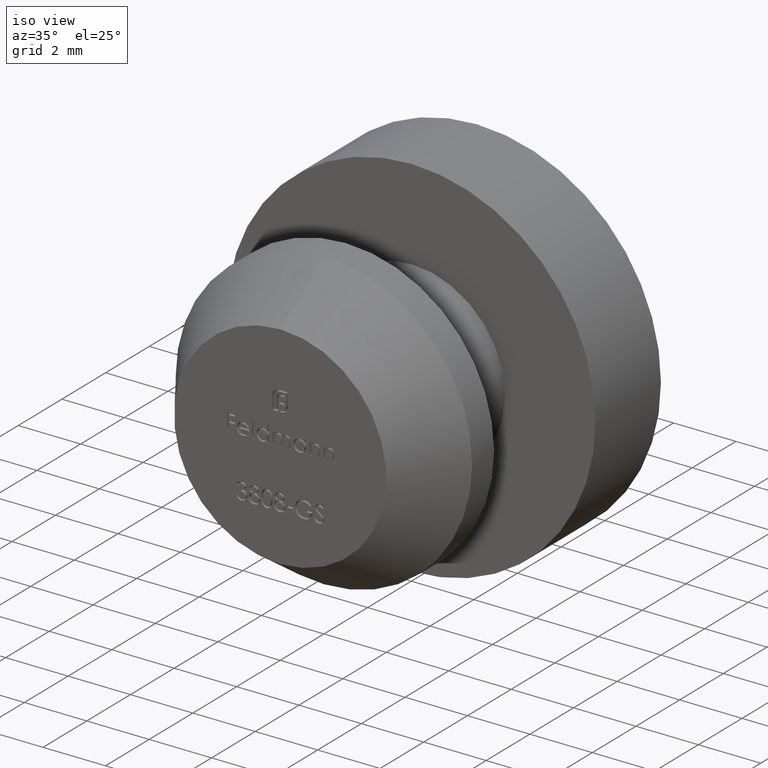
[diagram: clean part render]
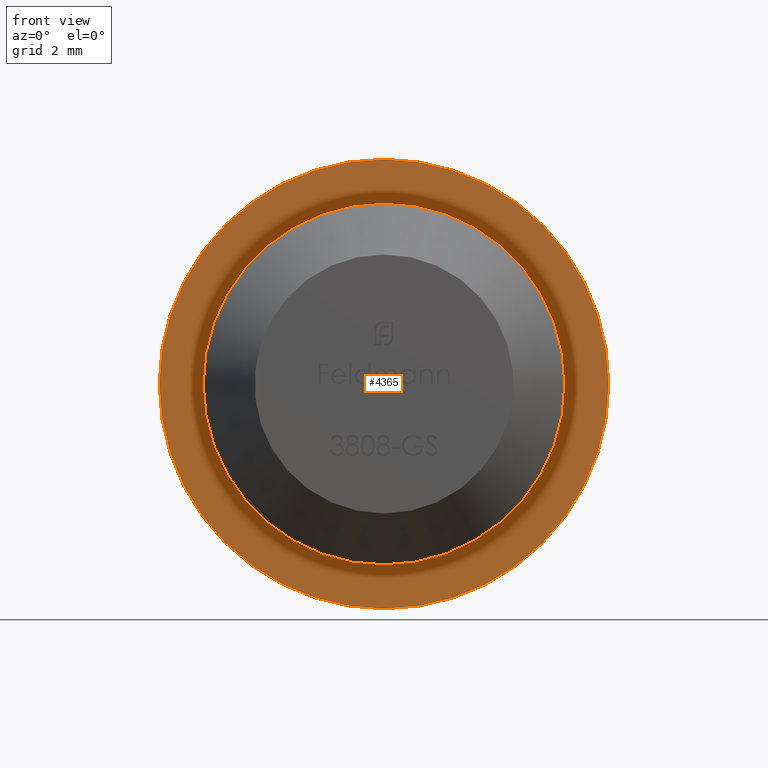
[diagram: tour spotlight — one face highlighted and labeled with its STEP entity id]
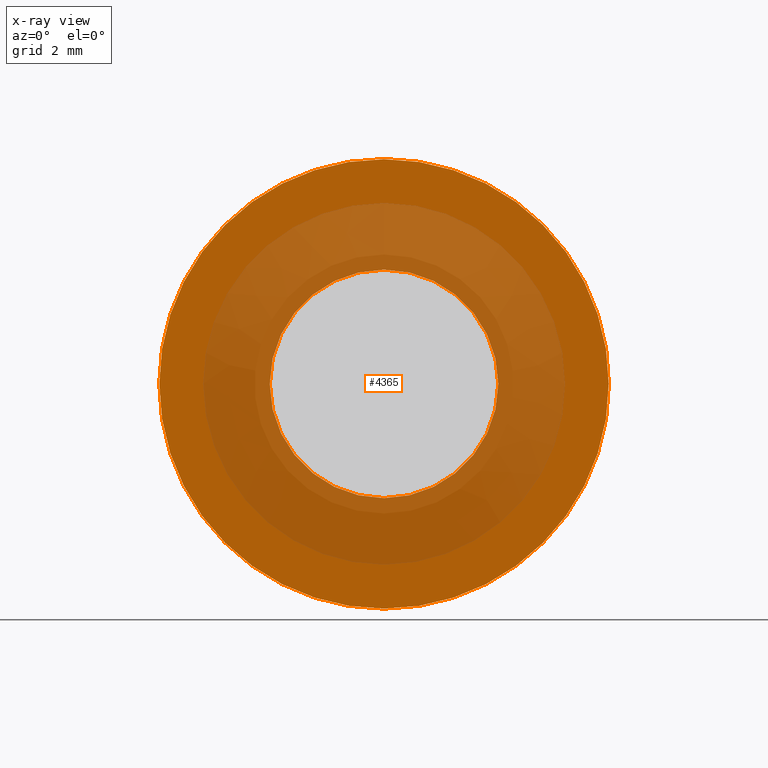
[diagram: x-ray of the same camera — body ghosted, this tour face saturated]
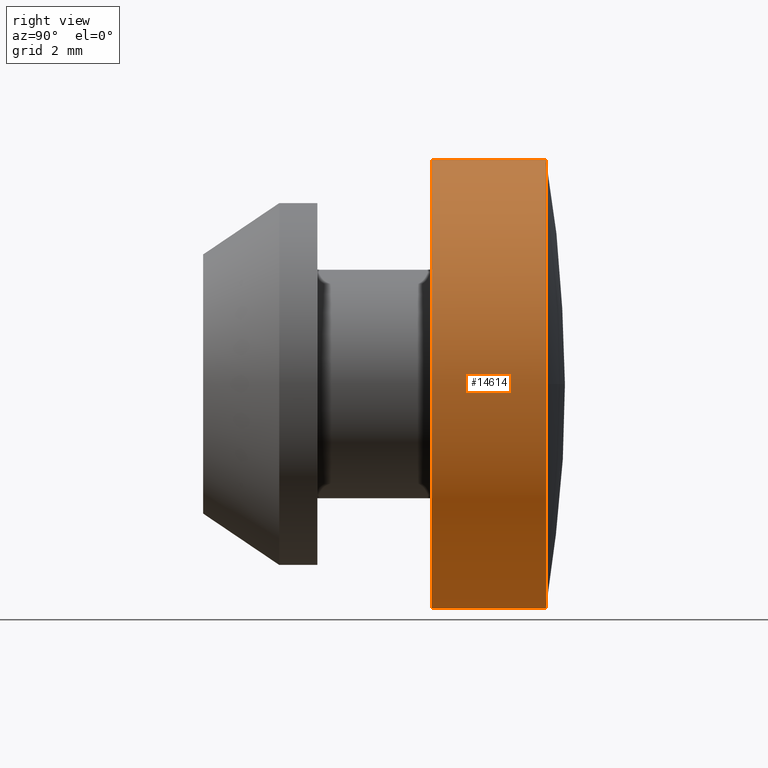
[diagram: tour spotlight — one face highlighted and labeled with its STEP entity id]
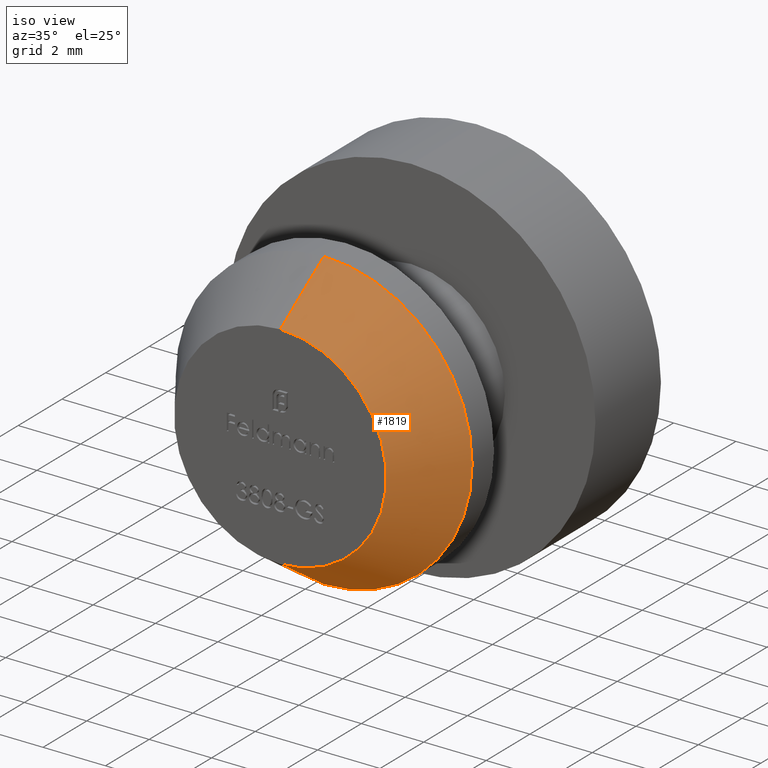
[diagram: tour spotlight — one face highlighted and labeled with its STEP entity id]
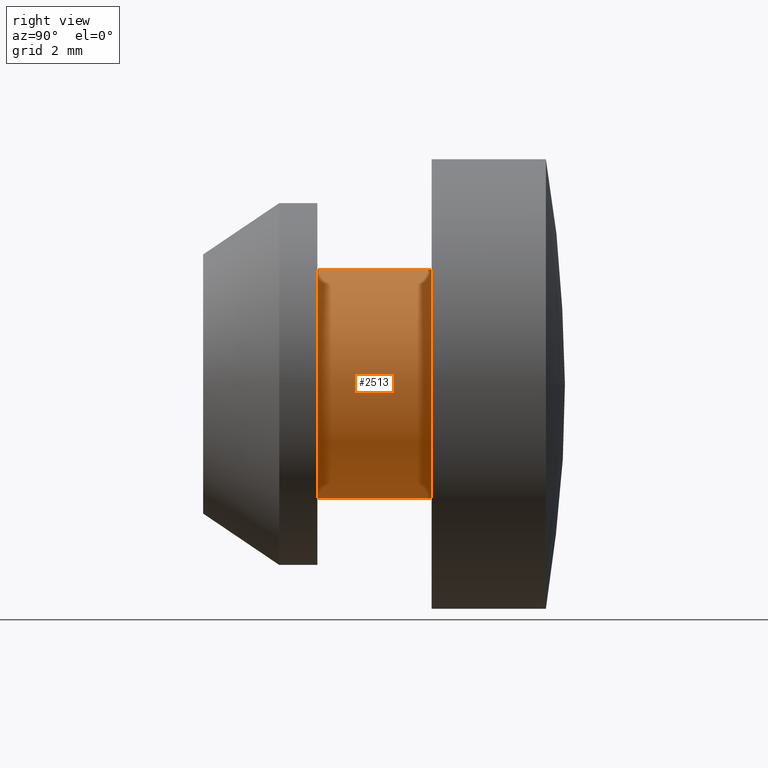
[diagram: tour spotlight — one face highlighted and labeled with its STEP entity id]
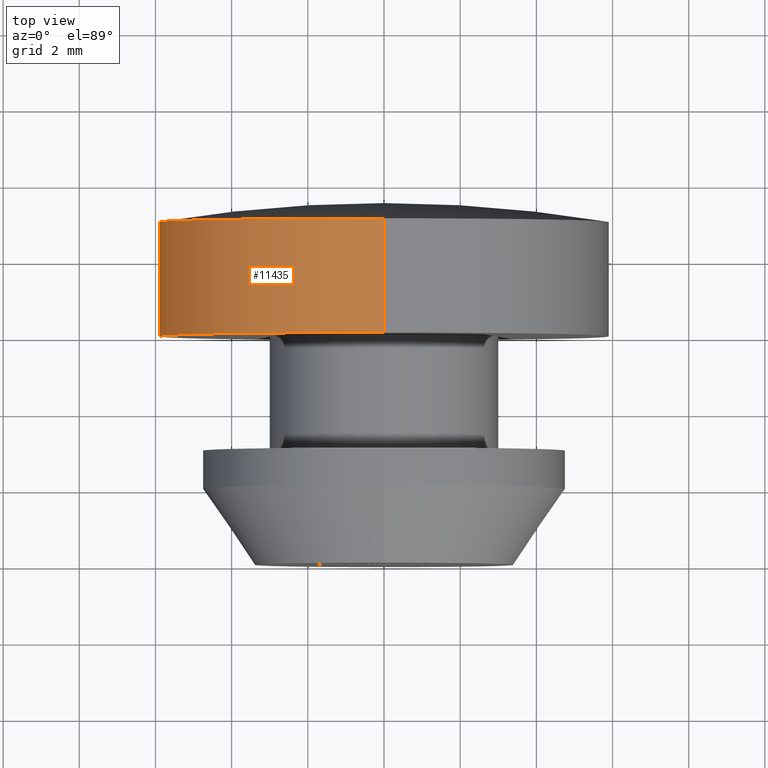
[diagram: tour spotlight — one face highlighted and labeled with its STEP entity id]
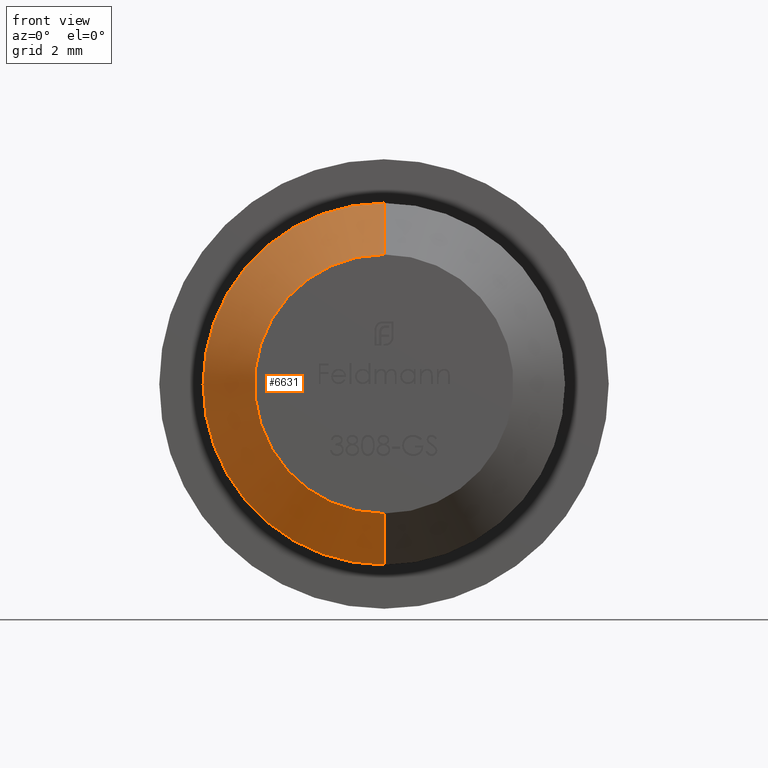
[diagram: tour spotlight — one face highlighted and labeled with its STEP entity id]
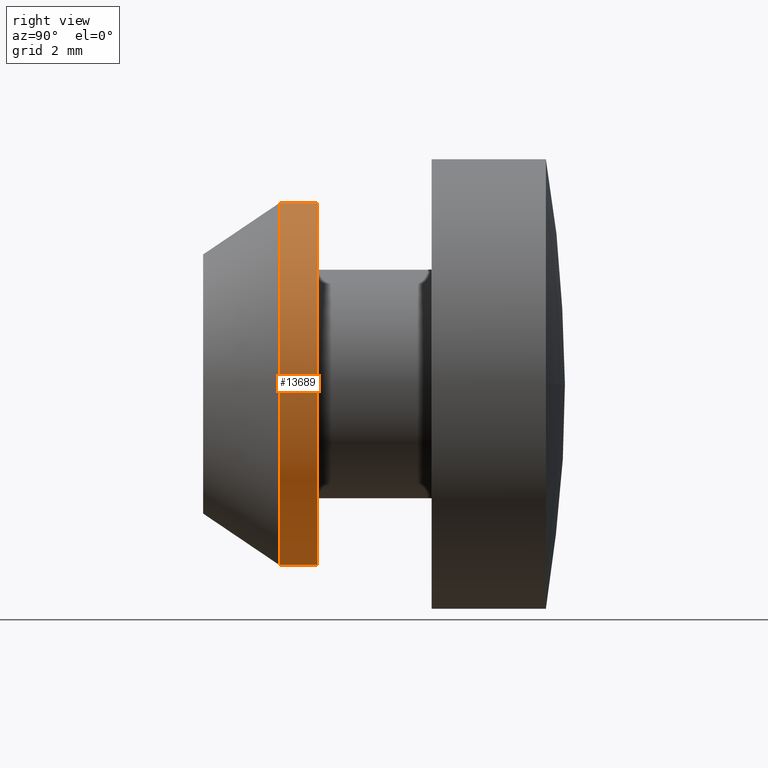
[diagram: tour spotlight — one face highlighted and labeled with its STEP entity id]
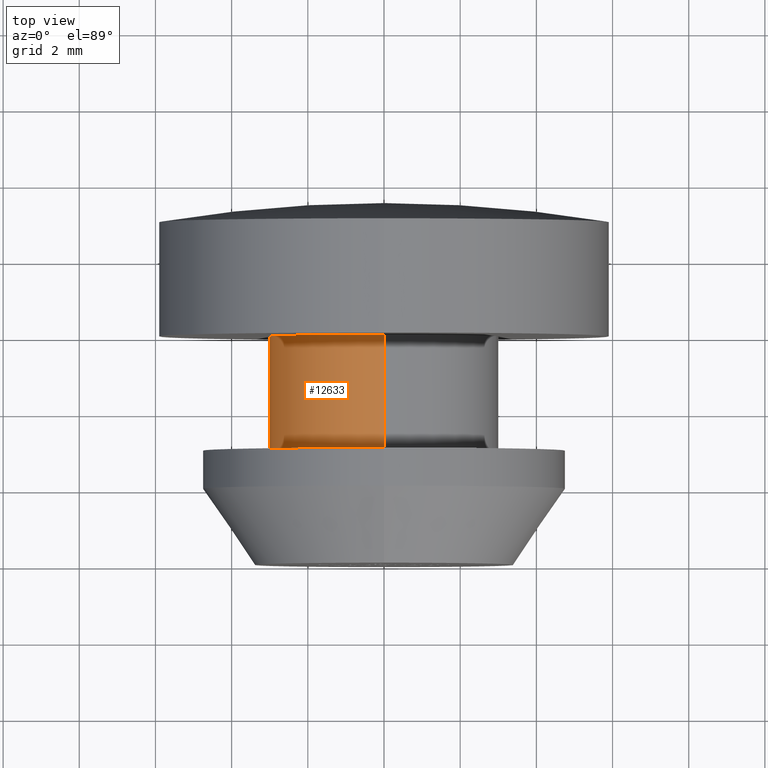
[diagram: tour spotlight — one face highlighted and labeled with its STEP entity id]
A machine part: a face-by-face anatomy tour. The part has 273 B-rep faces; the first image is the clean iso view, then the 8 largest visible faces are spotlighted one at a time (largest first), each with its STEP entity span.

Face 1 — front view, entity #4365. An x-ray twin of the same camera follows (body ghosted, this face saturated) — the face is partly hidden behind the body. In plain terms, the highlighted planar face has unit normal (0, -1, -0).
Definition (entity closure, byte-faithful):
#1037 = CARTESIAN_POINT ( 'NONE',  ( 0.000000000000000000, 6.000000000000000000, 0.000000000000000000 ) ) ;
#1202 = CARTESIAN_POINT ( 'NONE',  ( 7.225416114969384193E-16, 6.000000000000000000, 5.900000000000000355 ) ) ;
#2115 = DIRECTION ( 'NONE',  ( 0.000000000000000000, 0.000000000000000000, -1.000000000000000000 ) ) ;
#2367 = DIRECTION ( 'NONE',  ( -0.000000000000000000, -1.000000000000000000, -0.000000000000000000 ) ) ;
#2403 = CARTESIAN_POINT ( 'NONE',  ( 0.000000000000000000, 6.000000000000000000, -5.900000000000000355 ) ) ;
#3075 = CARTESIAN_POINT ( 'NONE',  ( 0.000000000000000000, 6.000000000000000000, -3.000000000000000000 ) ) ;
#3188 = EDGE_CURVE ( 'NONE', #13883, #9261, #3837, .T. ) ;
#3562 = VERTEX_POINT ( 'NONE', #3075 ) ;
#3592 = DIRECTION ( 'NONE',  ( 0.000000000000000000, 0.000000000000000000, -1.000000000000000000 ) ) ;
#3803 = CIRCLE ( 'NONE', #13211, 3.000000000000000000 ) ;
#3837 = CIRCLE ( 'NONE', #9014, 5.900000000000000355 ) ;
#3999 = FACE_BOUND ( 'NONE', #11600, .T. ) ;
#4365 = ADVANCED_FACE ( 'NONE', ( #10113, #3999 ), #5823, .T. ) ;
#4514 = CARTESIAN_POINT ( 'NONE',  ( 5.900000000000000355, 6.000000000000000000, 0.000000000000000000 ) ) ;
#5597 = EDGE_CURVE ( 'NONE', #9261, #13883, #13415, .T. ) ;
#5660 = CIRCLE ( 'NONE', #15141, 3.000000000000000000 ) ;
#5703 = EDGE_LOOP ( 'NONE', ( #12763, #11365 ) ) ;
#5823 = PLANE ( 'NONE',  #14236 ) ;
#7124 = DIRECTION ( 'NONE',  ( -0.000000000000000000, -1.000000000000000000, -0.000000000000000000 ) ) ;
#8352 = EDGE_CURVE ( 'NONE', #3562, #13428, #3803, .T. ) ;
#8884 = AXIS2_PLACEMENT_3D ( 'NONE', #9111, #11853, #2115 ) ;
#9014 = AXIS2_PLACEMENT_3D ( 'NONE', #12361, #9774, #14779 ) ;
#9111 = CARTESIAN_POINT ( 'NONE',  ( 0.000000000000000000, 6.000000000000000000, 0.000000000000000000 ) ) ;
#9261 = VERTEX_POINT ( 'NONE', #1202 ) ;
#9568 = DIRECTION ( 'NONE',  ( 0.000000000000000000, 0.000000000000000000, -1.000000000000000000 ) ) ;
#9691 = CARTESIAN_POINT ( 'NONE',  ( 0.000000000000000000, 6.000000000000000000, 0.000000000000000000 ) ) ;
#9774 = DIRECTION ( 'NONE',  ( -0.000000000000000000, -1.000000000000000000, -0.000000000000000000 ) ) ;
#10113 = FACE_OUTER_BOUND ( 'NONE', #5703, .T. ) ;
#10761 = ORIENTED_EDGE ( 'NONE', *, *, #8352, .F. ) ;
#11365 = ORIENTED_EDGE ( 'NONE', *, *, #5597, .T. ) ;
#11600 = EDGE_LOOP ( 'NONE', ( #10761, #12671 ) ) ;
#11853 = DIRECTION ( 'NONE',  ( -0.000000000000000000, -1.000000000000000000, -0.000000000000000000 ) ) ;
#12361 = CARTESIAN_POINT ( 'NONE',  ( 0.000000000000000000, 6.000000000000000000, 0.000000000000000000 ) ) ;
#12671 = ORIENTED_EDGE ( 'NONE', *, *, #13822, .F. ) ;
#12763 = ORIENTED_EDGE ( 'NONE', *, *, #3188, .T. ) ;
#13211 = AXIS2_PLACEMENT_3D ( 'NONE', #9691, #2367, #3592 ) ;
#13415 = CIRCLE ( 'NONE', #8884, 5.900000000000000355 ) ;
#13428 = VERTEX_POINT ( 'NONE', #15679 ) ;
#13822 = EDGE_CURVE ( 'NONE', #13428, #3562, #5660, .T. ) ;
#13883 = VERTEX_POINT ( 'NONE', #2403 ) ;
#14236 = AXIS2_PLACEMENT_3D ( 'NONE', #4514, #15522, #15416 ) ;
#14779 = DIRECTION ( 'NONE',  ( 0.000000000000000000, 0.000000000000000000, -1.000000000000000000 ) ) ;
#15141 = AXIS2_PLACEMENT_3D ( 'NONE', #1037, #7124, #9568 ) ;
#15416 = DIRECTION ( 'NONE',  ( 0.000000000000000000, 0.000000000000000000, -1.000000000000000000 ) ) ;
#15522 = DIRECTION ( 'NONE',  ( 0.000000000000000000, -1.000000000000000000, -0.000000000000000000 ) ) ;
#15679 = CARTESIAN_POINT ( 'NONE',  ( 3.673940397442059868E-16, 6.000000000000000000, 3.000000000000000000 ) ) ;

Face 2 — right view, entity #14614. In plain terms, the highlighted cylindrical surface (partial cylindrical patch) has radius 5.9 mm, axis along (-0, -1, -0).
Definition (entity closure, byte-faithful):
#68 = DIRECTION ( 'NONE',  ( 0.000000000000000000, 0.000000000000000000, -1.000000000000000000 ) ) ;
#112 = ORIENTED_EDGE ( 'NONE', *, *, #2583, .T. ) ;
#340 = ORIENTED_EDGE ( 'NONE', *, *, #12125, .F. ) ;
#1202 = CARTESIAN_POINT ( 'NONE',  ( 7.225416114969384193E-16, 6.000000000000000000, 5.900000000000000355 ) ) ;
#1238 = AXIS2_PLACEMENT_3D ( 'NONE', #9779, #10910, #68 ) ;
#1622 = CYLINDRICAL_SURFACE ( 'NONE', #8912, 5.900000000000000355 ) ;
#1749 = LINE ( 'NONE', #1909, #5574 ) ;
#1909 = CARTESIAN_POINT ( 'NONE',  ( 7.225416114969384193E-16, 0.000000000000000000, 5.900000000000000355 ) ) ;
#2185 = EDGE_CURVE ( 'NONE', #2352, #7444, #10930, .T. ) ;
#2352 = VERTEX_POINT ( 'NONE', #2937 ) ;
#2403 = CARTESIAN_POINT ( 'NONE',  ( 0.000000000000000000, 6.000000000000000000, -5.900000000000000355 ) ) ;
#2425 = CARTESIAN_POINT ( 'NONE',  ( 0.000000000000000000, 0.000000000000000000, 0.000000000000000000 ) ) ;
#2583 = EDGE_CURVE ( 'NONE', #5411, #9261, #1749, .T. ) ;
#2937 = CARTESIAN_POINT ( 'NONE',  ( 0.000000000000000000, 8.999999999999994671, -5.900000000000002132 ) ) ;
#3188 = EDGE_CURVE ( 'NONE', #13883, #9261, #3837, .T. ) ;
#3384 = VECTOR ( 'NONE', #5473, 1000.000000000000000 ) ;
#3704 = DIRECTION ( 'NONE',  ( 0.000000000000000000, 0.000000000000000000, -1.000000000000000000 ) ) ;
#3837 = CIRCLE ( 'NONE', #9014, 5.900000000000000355 ) ;
#4670 = AXIS2_PLACEMENT_3D ( 'NONE', #6227, #7296, #3704 ) ;
#5411 = VERTEX_POINT ( 'NONE', #10933 ) ;
#5473 = DIRECTION ( 'NONE',  ( -0.000000000000000000, -1.000000000000000000, -0.000000000000000000 ) ) ;
#5574 = VECTOR ( 'NONE', #10440, 1000.000000000000000 ) ;
#6227 = CARTESIAN_POINT ( 'NONE',  ( 0.000000000000000000, 8.999999999999994671, 0.000000000000000000 ) ) ;
#7022 = ORIENTED_EDGE ( 'NONE', *, *, #12547, .T. ) ;
#7296 = DIRECTION ( 'NONE',  ( -0.000000000000000000, -1.000000000000000000, -0.000000000000000000 ) ) ;
#7444 = VERTEX_POINT ( 'NONE', #7522 ) ;
#7522 = CARTESIAN_POINT ( 'NONE',  ( 5.900000000000005684, 8.999999999999998224, 0.000000000000000000 ) ) ;
#8757 = ORIENTED_EDGE ( 'NONE', *, *, #3188, .F. ) ;
#8912 = AXIS2_PLACEMENT_3D ( 'NONE', #2425, #13385, #12177 ) ;
#9014 = AXIS2_PLACEMENT_3D ( 'NONE', #12361, #9774, #14779 ) ;
#9261 = VERTEX_POINT ( 'NONE', #1202 ) ;
#9774 = DIRECTION ( 'NONE',  ( -0.000000000000000000, -1.000000000000000000, -0.000000000000000000 ) ) ;
#9779 = CARTESIAN_POINT ( 'NONE',  ( 0.000000000000000000, 8.999999999999994671, 0.000000000000000000 ) ) ;
#9914 = ORIENTED_EDGE ( 'NONE', *, *, #2185, .T. ) ;
#10440 = DIRECTION ( 'NONE',  ( -0.000000000000000000, -1.000000000000000000, -0.000000000000000000 ) ) ;
#10910 = DIRECTION ( 'NONE',  ( -0.000000000000000000, -1.000000000000000000, -0.000000000000000000 ) ) ;
#10930 = CIRCLE ( 'NONE', #4670, 5.900000000000001243 ) ;
#10933 = CARTESIAN_POINT ( 'NONE',  ( 7.225416114969386166E-16, 8.999999999999994671, 5.900000000000002132 ) ) ;
#10988 = FACE_OUTER_BOUND ( 'NONE', #13879, .T. ) ;
#12125 = EDGE_CURVE ( 'NONE', #2352, #13883, #13145, .T. ) ;
#12177 = DIRECTION ( 'NONE',  ( 0.000000000000000000, 0.000000000000000000, -1.000000000000000000 ) ) ;
#12361 = CARTESIAN_POINT ( 'NONE',  ( 0.000000000000000000, 6.000000000000000000, 0.000000000000000000 ) ) ;
#12547 = EDGE_CURVE ( 'NONE', #7444, #5411, #14455, .T. ) ;
#12686 = CARTESIAN_POINT ( 'NONE',  ( 0.000000000000000000, 0.000000000000000000, -5.900000000000000355 ) ) ;
#13145 = LINE ( 'NONE', #12686, #3384 ) ;
#13385 = DIRECTION ( 'NONE',  ( -0.000000000000000000, -1.000000000000000000, -0.000000000000000000 ) ) ;
#13879 = EDGE_LOOP ( 'NONE', ( #7022, #112, #8757, #340, #9914 ) ) ;
#13883 = VERTEX_POINT ( 'NONE', #2403 ) ;
#14455 = CIRCLE ( 'NONE', #1238, 5.900000000000001243 ) ;
#14614 = ADVANCED_FACE ( 'NONE', ( #10988 ), #1622, .T. ) ;
#14779 = DIRECTION ( 'NONE',  ( 0.000000000000000000, 0.000000000000000000, -1.000000000000000000 ) ) ;

Face 3 — iso view, entity #1819. In plain terms, the highlighted conical surface has half-angle 34.019 deg.
Definition (entity closure, byte-faithful):
#160 = EDGE_CURVE ( 'NONE', #10122, #7782, #6563, .T. ) ;
#1042 = AXIS2_PLACEMENT_3D ( 'NONE', #8622, #1300, #6019 ) ;
#1160 = CARTESIAN_POINT ( 'NONE',  ( 0.000000000000000000, 2.000000000000000000, -4.750000000000000888 ) ) ;
#1172 = EDGE_CURVE ( 'NONE', #12718, #15680, #4442, .T. ) ;
#1300 = DIRECTION ( 'NONE',  ( -0.000000000000000000, -1.000000000000000000, -0.000000000000000000 ) ) ;
#1750 = CARTESIAN_POINT ( 'NONE',  ( 0.000000000000000000, 2.570818882830996901E-16, 0.000000000000000000 ) ) ;
#1819 = ADVANCED_FACE ( 'NONE', ( #9601 ), #6157, .T. ) ;
#2235 = AXIS2_PLACEMENT_3D ( 'NONE', #1750, #5433, #11594 ) ;
#2650 = CARTESIAN_POINT ( 'NONE',  ( 0.000000000000000000, 2.570818882830996901E-16, 3.399999999999999911 ) ) ;
#3958 = AXIS2_PLACEMENT_3D ( 'NONE', #13430, #13573, #8620 ) ;
#4442 = LINE ( 'NONE', #14080, #13244 ) ;
#5276 = CARTESIAN_POINT ( 'NONE',  ( 4.990435706525463993E-16, 2.570818882830996901E-16, -3.399999999999999911 ) ) ;
#5433 = DIRECTION ( 'NONE',  ( 0.000000000000000000, 1.000000000000000000, 0.000000000000000000 ) ) ;
#6019 = DIRECTION ( 'NONE',  ( 0.000000000000000000, 0.000000000000000000, -1.000000000000000000 ) ) ;
#6157 = CONICAL_SURFACE ( 'NONE', #2235, 3.399999999999999911, 0.5937496667107715620 ) ;
#6563 = LINE ( 'NONE', #6834, #6968 ) ;
#6834 = CARTESIAN_POINT ( 'NONE',  ( 0.000000000000000000, 2.570818882830996901E-16, 3.399999999999999911 ) ) ;
#6928 = EDGE_CURVE ( 'NONE', #12718, #10122, #13957, .T. ) ;
#6968 = VECTOR ( 'NONE', #12223, 1000.000000000000114 ) ;
#7782 = VERTEX_POINT ( 'NONE', #10383 ) ;
#8313 = EDGE_LOOP ( 'NONE', ( #11672, #9076, #12285, #10304 ) ) ;
#8620 = DIRECTION ( 'NONE',  ( 0.000000000000000000, 0.000000000000000000, -1.000000000000000000 ) ) ;
#8622 = CARTESIAN_POINT ( 'NONE',  ( 0.000000000000000000, 2.000000000000000000, 0.000000000000000000 ) ) ;
#9076 = ORIENTED_EDGE ( 'NONE', *, *, #1172, .T. ) ;
#9601 = FACE_OUTER_BOUND ( 'NONE', #8313, .T. ) ;
#10122 = VERTEX_POINT ( 'NONE', #2650 ) ;
#10304 = ORIENTED_EDGE ( 'NONE', *, *, #160, .F. ) ;
#10383 = CARTESIAN_POINT ( 'NONE',  ( 5.817072295949928412E-16, 2.000000000000000000, 4.750000000000000888 ) ) ;
#10820 = EDGE_CURVE ( 'NONE', #15680, #7782, #15635, .T. ) ;
#11594 = DIRECTION ( 'NONE',  ( 0.000000000000000000, 0.000000000000000000, 1.000000000000000000 ) ) ;
#11672 = ORIENTED_EDGE ( 'NONE', *, *, #6928, .F. ) ;
#12223 = DIRECTION ( 'NONE',  ( 0.000000000000000000, 0.8288486740756478843, 0.5594728550010629187 ) ) ;
#12285 = ORIENTED_EDGE ( 'NONE', *, *, #10820, .T. ) ;
#12644 = DIRECTION ( 'NONE',  ( 6.851566410868828060E-17, 0.8288486740756478843, -0.5594728550010629187 ) ) ;
#12718 = VERTEX_POINT ( 'NONE', #5276 ) ;
#13244 = VECTOR ( 'NONE', #12644, 1000.000000000000114 ) ;
#13430 = CARTESIAN_POINT ( 'NONE',  ( 0.000000000000000000, 2.570818882830996901E-16, 0.000000000000000000 ) ) ;
#13573 = DIRECTION ( 'NONE',  ( -0.000000000000000000, -1.000000000000000000, -0.000000000000000000 ) ) ;
#13957 = CIRCLE ( 'NONE', #3958, 3.399999999999999911 ) ;
#14080 = CARTESIAN_POINT ( 'NONE',  ( 4.163799117101000559E-16, 2.570818882830996901E-16, -3.399999999999999911 ) ) ;
#15635 = CIRCLE ( 'NONE', #1042, 4.750000000000000888 ) ;
#15680 = VERTEX_POINT ( 'NONE', #1160 ) ;

Face 4 — right view, entity #2513. In plain terms, the highlighted cylindrical surface (partial cylindrical patch) has radius 3 mm, axis along (-0, -1, -0).
Definition (entity closure, byte-faithful):
#34 = ORIENTED_EDGE ( 'NONE', *, *, #3804, .F. ) ;
#1347 = LINE ( 'NONE', #1945, #15681 ) ;
#1945 = CARTESIAN_POINT ( 'NONE',  ( 0.000000000000000000, 0.000000000000000000, -3.000000000000000000 ) ) ;
#2288 = ORIENTED_EDGE ( 'NONE', *, *, #8352, .T. ) ;
#2367 = DIRECTION ( 'NONE',  ( -0.000000000000000000, -1.000000000000000000, -0.000000000000000000 ) ) ;
#2513 = ADVANCED_FACE ( 'NONE', ( #3273 ), #11292, .T. ) ;
#2972 = AXIS2_PLACEMENT_3D ( 'NONE', #15364, #8058, #5538 ) ;
#3075 = CARTESIAN_POINT ( 'NONE',  ( 0.000000000000000000, 6.000000000000000000, -3.000000000000000000 ) ) ;
#3273 = FACE_OUTER_BOUND ( 'NONE', #12433, .T. ) ;
#3562 = VERTEX_POINT ( 'NONE', #3075 ) ;
#3565 = DIRECTION ( 'NONE',  ( -0.000000000000000000, -1.000000000000000000, -0.000000000000000000 ) ) ;
#3592 = DIRECTION ( 'NONE',  ( 0.000000000000000000, 0.000000000000000000, -1.000000000000000000 ) ) ;
#3803 = CIRCLE ( 'NONE', #13211, 3.000000000000000000 ) ;
#3804 = EDGE_CURVE ( 'NONE', #3562, #7464, #1347, .T. ) ;
#4220 = EDGE_CURVE ( 'NONE', #13428, #13124, #6907, .T. ) ;
#4389 = DIRECTION ( 'NONE',  ( -0.000000000000000000, -1.000000000000000000, -0.000000000000000000 ) ) ;
#5193 = CARTESIAN_POINT ( 'NONE',  ( 3.673940397442059868E-16, 3.000000000000000000, 3.000000000000000000 ) ) ;
#5538 = DIRECTION ( 'NONE',  ( 0.000000000000000000, 0.000000000000000000, -1.000000000000000000 ) ) ;
#6907 = LINE ( 'NONE', #14106, #10515 ) ;
#7464 = VERTEX_POINT ( 'NONE', #11105 ) ;
#8058 = DIRECTION ( 'NONE',  ( -0.000000000000000000, -1.000000000000000000, -0.000000000000000000 ) ) ;
#8352 = EDGE_CURVE ( 'NONE', #3562, #13428, #3803, .T. ) ;
#8542 = CARTESIAN_POINT ( 'NONE',  ( 0.000000000000000000, 3.000000000000000000, 0.000000000000000000 ) ) ;
#9691 = CARTESIAN_POINT ( 'NONE',  ( 0.000000000000000000, 6.000000000000000000, 0.000000000000000000 ) ) ;
#10515 = VECTOR ( 'NONE', #12759, 1000.000000000000000 ) ;
#10635 = ORIENTED_EDGE ( 'NONE', *, *, #4220, .T. ) ;
#11105 = CARTESIAN_POINT ( 'NONE',  ( 0.000000000000000000, 3.000000000000000000, -3.000000000000000000 ) ) ;
#11292 = CYLINDRICAL_SURFACE ( 'NONE', #2972, 3.000000000000000000 ) ;
#12433 = EDGE_LOOP ( 'NONE', ( #2288, #10635, #15575, #34 ) ) ;
#12759 = DIRECTION ( 'NONE',  ( -0.000000000000000000, -1.000000000000000000, -0.000000000000000000 ) ) ;
#13124 = VERTEX_POINT ( 'NONE', #5193 ) ;
#13211 = AXIS2_PLACEMENT_3D ( 'NONE', #9691, #2367, #3592 ) ;
#13400 = DIRECTION ( 'NONE',  ( 0.000000000000000000, 0.000000000000000000, -1.000000000000000000 ) ) ;
#13428 = VERTEX_POINT ( 'NONE', #15679 ) ;
#14106 = CARTESIAN_POINT ( 'NONE',  ( 3.673940397442059868E-16, 0.000000000000000000, 3.000000000000000000 ) ) ;
#14254 = AXIS2_PLACEMENT_3D ( 'NONE', #8542, #3565, #13400 ) ;
#14770 = CIRCLE ( 'NONE', #14254, 3.000000000000000000 ) ;
#15364 = CARTESIAN_POINT ( 'NONE',  ( 0.000000000000000000, 0.000000000000000000, 0.000000000000000000 ) ) ;
#15575 = ORIENTED_EDGE ( 'NONE', *, *, #15634, .F. ) ;
#15634 = EDGE_CURVE ( 'NONE', #7464, #13124, #14770, .T. ) ;
#15679 = CARTESIAN_POINT ( 'NONE',  ( 3.673940397442059868E-16, 6.000000000000000000, 3.000000000000000000 ) ) ;
#15681 = VECTOR ( 'NONE', #4389, 1000.000000000000000 ) ;

Face 5 — top view, entity #11435. In plain terms, the highlighted cylindrical surface (partial cylindrical patch) has radius 5.9 mm, axis along (-0, -1, -0).
Definition (entity closure, byte-faithful):
#489 = ORIENTED_EDGE ( 'NONE', *, *, #5597, .F. ) ;
#765 = EDGE_CURVE ( 'NONE', #5411, #12333, #7687, .T. ) ;
#1202 = CARTESIAN_POINT ( 'NONE',  ( 7.225416114969384193E-16, 6.000000000000000000, 5.900000000000000355 ) ) ;
#1420 = ORIENTED_EDGE ( 'NONE', *, *, #5020, .T. ) ;
#1652 = DIRECTION ( 'NONE',  ( 0.000000000000000000, 0.000000000000000000, -1.000000000000000000 ) ) ;
#1749 = LINE ( 'NONE', #1909, #5574 ) ;
#1909 = CARTESIAN_POINT ( 'NONE',  ( 7.225416114969384193E-16, 0.000000000000000000, 5.900000000000000355 ) ) ;
#2115 = DIRECTION ( 'NONE',  ( 0.000000000000000000, 0.000000000000000000, -1.000000000000000000 ) ) ;
#2165 = AXIS2_PLACEMENT_3D ( 'NONE', #2924, #9024, #1652 ) ;
#2352 = VERTEX_POINT ( 'NONE', #2937 ) ;
#2403 = CARTESIAN_POINT ( 'NONE',  ( 0.000000000000000000, 6.000000000000000000, -5.900000000000000355 ) ) ;
#2583 = EDGE_CURVE ( 'NONE', #5411, #9261, #1749, .T. ) ;
#2924 = CARTESIAN_POINT ( 'NONE',  ( 0.000000000000000000, 8.999999999999994671, 0.000000000000000000 ) ) ;
#2937 = CARTESIAN_POINT ( 'NONE',  ( 0.000000000000000000, 8.999999999999994671, -5.900000000000002132 ) ) ;
#3384 = VECTOR ( 'NONE', #5473, 1000.000000000000000 ) ;
#3426 = ORIENTED_EDGE ( 'NONE', *, *, #12125, .T. ) ;
#3468 = ORIENTED_EDGE ( 'NONE', *, *, #765, .T. ) ;
#4540 = FACE_OUTER_BOUND ( 'NONE', #5162, .T. ) ;
#4916 = DIRECTION ( 'NONE',  ( -0.000000000000000000, -1.000000000000000000, -0.000000000000000000 ) ) ;
#5020 = EDGE_CURVE ( 'NONE', #12333, #2352, #6165, .T. ) ;
#5162 = EDGE_LOOP ( 'NONE', ( #10377, #3468, #1420, #3426, #489 ) ) ;
#5411 = VERTEX_POINT ( 'NONE', #10933 ) ;
#5473 = DIRECTION ( 'NONE',  ( -0.000000000000000000, -1.000000000000000000, -0.000000000000000000 ) ) ;
#5574 = VECTOR ( 'NONE', #10440, 1000.000000000000000 ) ;
#5597 = EDGE_CURVE ( 'NONE', #9261, #13883, #13415, .T. ) ;
#5612 = DIRECTION ( 'NONE',  ( 0.000000000000000000, 0.000000000000000000, -1.000000000000000000 ) ) ;
#6165 = CIRCLE ( 'NONE', #2165, 5.900000000000001243 ) ;
#6824 = CARTESIAN_POINT ( 'NONE',  ( -5.900000000000005684, 8.999999999999998224, 7.225416114969391096E-16 ) ) ;
#7406 = CYLINDRICAL_SURFACE ( 'NONE', #8202, 5.900000000000000355 ) ;
#7687 = CIRCLE ( 'NONE', #13191, 5.900000000000001243 ) ;
#8202 = AXIS2_PLACEMENT_3D ( 'NONE', #14774, #12874, #5612 ) ;
#8884 = AXIS2_PLACEMENT_3D ( 'NONE', #9111, #11853, #2115 ) ;
#9024 = DIRECTION ( 'NONE',  ( -0.000000000000000000, -1.000000000000000000, -0.000000000000000000 ) ) ;
#9111 = CARTESIAN_POINT ( 'NONE',  ( 0.000000000000000000, 6.000000000000000000, 0.000000000000000000 ) ) ;
#9261 = VERTEX_POINT ( 'NONE', #1202 ) ;
#10377 = ORIENTED_EDGE ( 'NONE', *, *, #2583, .F. ) ;
#10440 = DIRECTION ( 'NONE',  ( -0.000000000000000000, -1.000000000000000000, -0.000000000000000000 ) ) ;
#10933 = CARTESIAN_POINT ( 'NONE',  ( 7.225416114969386166E-16, 8.999999999999994671, 5.900000000000002132 ) ) ;
#11435 = ADVANCED_FACE ( 'NONE', ( #4540 ), #7406, .T. ) ;
#11853 = DIRECTION ( 'NONE',  ( -0.000000000000000000, -1.000000000000000000, -0.000000000000000000 ) ) ;
#12125 = EDGE_CURVE ( 'NONE', #2352, #13883, #13145, .T. ) ;
#12279 = CARTESIAN_POINT ( 'NONE',  ( 0.000000000000000000, 8.999999999999994671, 0.000000000000000000 ) ) ;
#12333 = VERTEX_POINT ( 'NONE', #6824 ) ;
#12686 = CARTESIAN_POINT ( 'NONE',  ( 0.000000000000000000, 0.000000000000000000, -5.900000000000000355 ) ) ;
#12874 = DIRECTION ( 'NONE',  ( -0.000000000000000000, -1.000000000000000000, -0.000000000000000000 ) ) ;
#13145 = LINE ( 'NONE', #12686, #3384 ) ;
#13191 = AXIS2_PLACEMENT_3D ( 'NONE', #12279, #4916, #15822 ) ;
#13415 = CIRCLE ( 'NONE', #8884, 5.900000000000000355 ) ;
#13883 = VERTEX_POINT ( 'NONE', #2403 ) ;
#14774 = CARTESIAN_POINT ( 'NONE',  ( 0.000000000000000000, 0.000000000000000000, 0.000000000000000000 ) ) ;
#15822 = DIRECTION ( 'NONE',  ( 0.000000000000000000, 0.000000000000000000, -1.000000000000000000 ) ) ;

Face 6 — front view, entity #6631. In plain terms, the highlighted conical surface has half-angle 34.019 deg.
Definition (entity closure, byte-faithful):
#160 = EDGE_CURVE ( 'NONE', #10122, #7782, #6563, .T. ) ;
#186 = CARTESIAN_POINT ( 'NONE',  ( 0.000000000000000000, 2.570818882830996901E-16, 0.000000000000000000 ) ) ;
#237 = DIRECTION ( 'NONE',  ( 0.000000000000000000, 1.000000000000000000, 0.000000000000000000 ) ) ;
#853 = DIRECTION ( 'NONE',  ( 0.000000000000000000, 0.000000000000000000, -1.000000000000000000 ) ) ;
#1160 = CARTESIAN_POINT ( 'NONE',  ( 0.000000000000000000, 2.000000000000000000, -4.750000000000000888 ) ) ;
#1172 = EDGE_CURVE ( 'NONE', #12718, #15680, #4442, .T. ) ;
#2645 = ORIENTED_EDGE ( 'NONE', *, *, #1172, .F. ) ;
#2650 = CARTESIAN_POINT ( 'NONE',  ( 0.000000000000000000, 2.570818882830996901E-16, 3.399999999999999911 ) ) ;
#2739 = ORIENTED_EDGE ( 'NONE', *, *, #13878, .T. ) ;
#3368 = CIRCLE ( 'NONE', #14636, 4.750000000000000888 ) ;
#4442 = LINE ( 'NONE', #14080, #13244 ) ;
#4697 = CARTESIAN_POINT ( 'NONE',  ( 0.000000000000000000, 2.000000000000000000, 0.000000000000000000 ) ) ;
#5037 = EDGE_LOOP ( 'NONE', ( #2645, #13962, #7458, #2739 ) ) ;
#5276 = CARTESIAN_POINT ( 'NONE',  ( 4.990435706525463993E-16, 2.570818882830996901E-16, -3.399999999999999911 ) ) ;
#5868 = AXIS2_PLACEMENT_3D ( 'NONE', #6894, #11813, #853 ) ;
#6563 = LINE ( 'NONE', #6834, #6968 ) ;
#6631 = ADVANCED_FACE ( 'NONE', ( #13033 ), #9755, .T. ) ;
#6834 = CARTESIAN_POINT ( 'NONE',  ( 0.000000000000000000, 2.570818882830996901E-16, 3.399999999999999911 ) ) ;
#6894 = CARTESIAN_POINT ( 'NONE',  ( 0.000000000000000000, 2.570818882830996901E-16, 0.000000000000000000 ) ) ;
#6968 = VECTOR ( 'NONE', #12223, 1000.000000000000114 ) ;
#7458 = ORIENTED_EDGE ( 'NONE', *, *, #160, .T. ) ;
#7782 = VERTEX_POINT ( 'NONE', #10383 ) ;
#9057 = DIRECTION ( 'NONE',  ( 0.000000000000000000, 0.000000000000000000, 1.000000000000000000 ) ) ;
#9673 = DIRECTION ( 'NONE',  ( -0.000000000000000000, -1.000000000000000000, -0.000000000000000000 ) ) ;
#9755 = CONICAL_SURFACE ( 'NONE', #14894, 3.399999999999999911, 0.5937496667107715620 ) ;
#10122 = VERTEX_POINT ( 'NONE', #2650 ) ;
#10383 = CARTESIAN_POINT ( 'NONE',  ( 5.817072295949928412E-16, 2.000000000000000000, 4.750000000000000888 ) ) ;
#10431 = CIRCLE ( 'NONE', #5868, 3.399999999999999911 ) ;
#11813 = DIRECTION ( 'NONE',  ( -0.000000000000000000, -1.000000000000000000, -0.000000000000000000 ) ) ;
#12223 = DIRECTION ( 'NONE',  ( 0.000000000000000000, 0.8288486740756478843, 0.5594728550010629187 ) ) ;
#12644 = DIRECTION ( 'NONE',  ( 6.851566410868828060E-17, 0.8288486740756478843, -0.5594728550010629187 ) ) ;
#12718 = VERTEX_POINT ( 'NONE', #5276 ) ;
#13033 = FACE_OUTER_BOUND ( 'NONE', #5037, .T. ) ;
#13174 = EDGE_CURVE ( 'NONE', #10122, #12718, #10431, .T. ) ;
#13244 = VECTOR ( 'NONE', #12644, 1000.000000000000114 ) ;
#13414 = DIRECTION ( 'NONE',  ( 0.000000000000000000, 0.000000000000000000, -1.000000000000000000 ) ) ;
#13878 = EDGE_CURVE ( 'NONE', #7782, #15680, #3368, .T. ) ;
#13962 = ORIENTED_EDGE ( 'NONE', *, *, #13174, .F. ) ;
#14080 = CARTESIAN_POINT ( 'NONE',  ( 4.163799117101000559E-16, 2.570818882830996901E-16, -3.399999999999999911 ) ) ;
#14636 = AXIS2_PLACEMENT_3D ( 'NONE', #4697, #9673, #13414 ) ;
#14894 = AXIS2_PLACEMENT_3D ( 'NONE', #186, #237, #9057 ) ;
#15680 = VERTEX_POINT ( 'NONE', #1160 ) ;

Face 7 — right view, entity #13689. In plain terms, the highlighted cylindrical surface (partial cylindrical patch) has radius 4.75 mm, axis along (-0, -1, -0).
Definition (entity closure, byte-faithful):
#885 = DIRECTION ( 'NONE',  ( 0.000000000000000000, 0.000000000000000000, -1.000000000000000000 ) ) ;
#1042 = AXIS2_PLACEMENT_3D ( 'NONE', #8622, #1300, #6019 ) ;
#1160 = CARTESIAN_POINT ( 'NONE',  ( 0.000000000000000000, 2.000000000000000000, -4.750000000000000888 ) ) ;
#1300 = DIRECTION ( 'NONE',  ( -0.000000000000000000, -1.000000000000000000, -0.000000000000000000 ) ) ;
#1428 = VERTEX_POINT ( 'NONE', #13003 ) ;
#1986 = ORIENTED_EDGE ( 'NONE', *, *, #12423, .T. ) ;
#2319 = VECTOR ( 'NONE', #6725, 1000.000000000000000 ) ;
#2410 = EDGE_CURVE ( 'NONE', #12701, #15680, #14904, .T. ) ;
#2413 = ORIENTED_EDGE ( 'NONE', *, *, #7504, .T. ) ;
#2752 = CARTESIAN_POINT ( 'NONE',  ( 5.817072295949928412E-16, 0.000000000000000000, 4.750000000000000888 ) ) ;
#4221 = CARTESIAN_POINT ( 'NONE',  ( 0.000000000000000000, 0.000000000000000000, 0.000000000000000000 ) ) ;
#4995 = AXIS2_PLACEMENT_3D ( 'NONE', #12008, #12062, #9479 ) ;
#5456 = FACE_OUTER_BOUND ( 'NONE', #13019, .T. ) ;
#5653 = ORIENTED_EDGE ( 'NONE', *, *, #2410, .F. ) ;
#5947 = LINE ( 'NONE', #2752, #13569 ) ;
#6019 = DIRECTION ( 'NONE',  ( 0.000000000000000000, 0.000000000000000000, -1.000000000000000000 ) ) ;
#6354 = CARTESIAN_POINT ( 'NONE',  ( 0.000000000000000000, 3.000000000000000000, -4.750000000000000000 ) ) ;
#6611 = ORIENTED_EDGE ( 'NONE', *, *, #10820, .F. ) ;
#6725 = DIRECTION ( 'NONE',  ( -0.000000000000000000, -1.000000000000000000, -0.000000000000000000 ) ) ;
#7188 = CYLINDRICAL_SURFACE ( 'NONE', #12702, 4.750000000000000888 ) ;
#7504 = EDGE_CURVE ( 'NONE', #1428, #7782, #5947, .T. ) ;
#7782 = VERTEX_POINT ( 'NONE', #10383 ) ;
#8622 = CARTESIAN_POINT ( 'NONE',  ( 0.000000000000000000, 2.000000000000000000, 0.000000000000000000 ) ) ;
#9308 = CIRCLE ( 'NONE', #4995, 4.750000000000000000 ) ;
#9479 = DIRECTION ( 'NONE',  ( 0.000000000000000000, 0.000000000000000000, -1.000000000000000000 ) ) ;
#10383 = CARTESIAN_POINT ( 'NONE',  ( 5.817072295949928412E-16, 2.000000000000000000, 4.750000000000000888 ) ) ;
#10820 = EDGE_CURVE ( 'NONE', #15680, #7782, #15635, .T. ) ;
#11597 = DIRECTION ( 'NONE',  ( -0.000000000000000000, -1.000000000000000000, -0.000000000000000000 ) ) ;
#12008 = CARTESIAN_POINT ( 'NONE',  ( 0.000000000000000000, 3.000000000000000000, 0.000000000000000000 ) ) ;
#12062 = DIRECTION ( 'NONE',  ( -0.000000000000000000, -1.000000000000000000, -0.000000000000000000 ) ) ;
#12423 = EDGE_CURVE ( 'NONE', #12701, #1428, #9308, .T. ) ;
#12701 = VERTEX_POINT ( 'NONE', #6354 ) ;
#12702 = AXIS2_PLACEMENT_3D ( 'NONE', #4221, #12786, #885 ) ;
#12760 = CARTESIAN_POINT ( 'NONE',  ( 0.000000000000000000, 0.000000000000000000, -4.750000000000000888 ) ) ;
#12786 = DIRECTION ( 'NONE',  ( -0.000000000000000000, -1.000000000000000000, -0.000000000000000000 ) ) ;
#13003 = CARTESIAN_POINT ( 'NONE',  ( 5.817072295949927426E-16, 3.000000000000000000, 4.750000000000000000 ) ) ;
#13019 = EDGE_LOOP ( 'NONE', ( #1986, #2413, #6611, #5653 ) ) ;
#13569 = VECTOR ( 'NONE', #11597, 1000.000000000000000 ) ;
#13689 = ADVANCED_FACE ( 'NONE', ( #5456 ), #7188, .T. ) ;
#14904 = LINE ( 'NONE', #12760, #2319 ) ;
#15635 = CIRCLE ( 'NONE', #1042, 4.750000000000000888 ) ;
#15680 = VERTEX_POINT ( 'NONE', #1160 ) ;

Face 8 — top view, entity #12633. In plain terms, the highlighted cylindrical surface (partial cylindrical patch) has radius 3 mm, axis along (-0, -1, -0).
Definition (entity closure, byte-faithful):
#491 = CYLINDRICAL_SURFACE ( 'NONE', #631, 3.000000000000000000 ) ;
#631 = AXIS2_PLACEMENT_3D ( 'NONE', #13475, #6161, #13425 ) ;
#875 = ORIENTED_EDGE ( 'NONE', *, *, #13822, .T. ) ;
#920 = EDGE_LOOP ( 'NONE', ( #8088, #875, #10306, #5233 ) ) ;
#1037 = CARTESIAN_POINT ( 'NONE',  ( 0.000000000000000000, 6.000000000000000000, 0.000000000000000000 ) ) ;
#1347 = LINE ( 'NONE', #1945, #15681 ) ;
#1945 = CARTESIAN_POINT ( 'NONE',  ( 0.000000000000000000, 0.000000000000000000, -3.000000000000000000 ) ) ;
#2907 = DIRECTION ( 'NONE',  ( 0.000000000000000000, 0.000000000000000000, -1.000000000000000000 ) ) ;
#3075 = CARTESIAN_POINT ( 'NONE',  ( 0.000000000000000000, 6.000000000000000000, -3.000000000000000000 ) ) ;
#3562 = VERTEX_POINT ( 'NONE', #3075 ) ;
#3804 = EDGE_CURVE ( 'NONE', #3562, #7464, #1347, .T. ) ;
#4220 = EDGE_CURVE ( 'NONE', #13428, #13124, #6907, .T. ) ;
#4389 = DIRECTION ( 'NONE',  ( -0.000000000000000000, -1.000000000000000000, -0.000000000000000000 ) ) ;
#5193 = CARTESIAN_POINT ( 'NONE',  ( 3.673940397442059868E-16, 3.000000000000000000, 3.000000000000000000 ) ) ;
#5233 = ORIENTED_EDGE ( 'NONE', *, *, #10481, .F. ) ;
#5660 = CIRCLE ( 'NONE', #15141, 3.000000000000000000 ) ;
#6161 = DIRECTION ( 'NONE',  ( -0.000000000000000000, -1.000000000000000000, -0.000000000000000000 ) ) ;
#6907 = LINE ( 'NONE', #14106, #10515 ) ;
#7124 = DIRECTION ( 'NONE',  ( -0.000000000000000000, -1.000000000000000000, -0.000000000000000000 ) ) ;
#7464 = VERTEX_POINT ( 'NONE', #11105 ) ;
#8088 = ORIENTED_EDGE ( 'NONE', *, *, #4220, .F. ) ;
#9568 = DIRECTION ( 'NONE',  ( 0.000000000000000000, 0.000000000000000000, -1.000000000000000000 ) ) ;
#10306 = ORIENTED_EDGE ( 'NONE', *, *, #3804, .T. ) ;
#10481 = EDGE_CURVE ( 'NONE', #13124, #7464, #12778, .T. ) ;
#10515 = VECTOR ( 'NONE', #12759, 1000.000000000000000 ) ;
#10623 = FACE_OUTER_BOUND ( 'NONE', #920, .T. ) ;
#11105 = CARTESIAN_POINT ( 'NONE',  ( 0.000000000000000000, 3.000000000000000000, -3.000000000000000000 ) ) ;
#11416 = DIRECTION ( 'NONE',  ( -0.000000000000000000, -1.000000000000000000, -0.000000000000000000 ) ) ;
#12633 = ADVANCED_FACE ( 'NONE', ( #10623 ), #491, .T. ) ;
#12759 = DIRECTION ( 'NONE',  ( -0.000000000000000000, -1.000000000000000000, -0.000000000000000000 ) ) ;
#12778 = CIRCLE ( 'NONE', #15021, 3.000000000000000000 ) ;
#13124 = VERTEX_POINT ( 'NONE', #5193 ) ;
#13425 = DIRECTION ( 'NONE',  ( 0.000000000000000000, 0.000000000000000000, -1.000000000000000000 ) ) ;
#13428 = VERTEX_POINT ( 'NONE', #15679 ) ;
#13475 = CARTESIAN_POINT ( 'NONE',  ( 0.000000000000000000, 0.000000000000000000, 0.000000000000000000 ) ) ;
#13822 = EDGE_CURVE ( 'NONE', #13428, #3562, #5660, .T. ) ;
#14106 = CARTESIAN_POINT ( 'NONE',  ( 3.673940397442059868E-16, 0.000000000000000000, 3.000000000000000000 ) ) ;
#14969 = CARTESIAN_POINT ( 'NONE',  ( 0.000000000000000000, 3.000000000000000000, 0.000000000000000000 ) ) ;
#15021 = AXIS2_PLACEMENT_3D ( 'NONE', #14969, #11416, #2907 ) ;
#15141 = AXIS2_PLACEMENT_3D ( 'NONE', #1037, #7124, #9568 ) ;
#15679 = CARTESIAN_POINT ( 'NONE',  ( 3.673940397442059868E-16, 6.000000000000000000, 3.000000000000000000 ) ) ;
#15681 = VECTOR ( 'NONE', #4389, 1000.000000000000000 ) ;